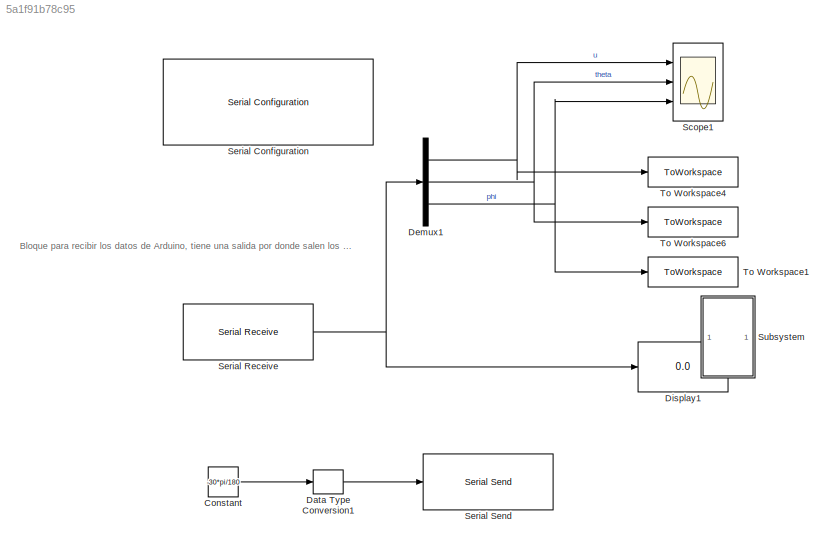
MODEL slx_5a1f91b78c95
KIND model
CONFIG AbsTol = auto
CONFIG EnableMultiTasking = off
CONFIG FixedStep = auto
CONFIG MaxStep = auto
CONFIG MinStep = auto
CONFIG RelTol = 1e-3
CONFIG SampleTimeConstraint = Unconstrained
CONFIG SolverName = VariableStepAuto
CONFIG StartTime = 0.0
CONFIG StopTime = Inf
BLOCK [Constant] Constant
  Value = -30*pi/180
BLOCK [DataTypeConversion] Data Type Conversion1
  OutDataTypeStr = single
  RndMeth = Floor
  SaturateOnIntegerOverflow = off
BLOCK [Demux] Demux1
  Outputs = 3
  Ports = [1, 3]
BLOCK [Display] Display1
  Decimation = 1
  Ports = [1]
BLOCK [Scope] Scope1
  Floating = off
  NumInputPorts = 3
  Ports = [3]
  ScopeSpecificationString = Simulink.scopes.TimeScopeBlockCfg('CurrentConfiguration', extmgr.ConfigurationSet(extmgr.Configuration('Core','General UI',true,'FigureColor',[0.8 0.8 0.8]),extmgr.Configuration('Core','Source UI',true),extmgr.Configuration('Sources','WiredSimulink',true,'DataLoggingVariableName','ScopeData1'),extmgr.Configuration('Visuals','Time Domain',true,'SerializedDisplays',{struct('MinYLimReal','-0.58905','...<+3797ch>
BLOCK [Reference] Serial Configuration  REF=instrumentseriallib/Serial Configuration
  Ports = []
  Priority = -200000
  SourceBlock = instrumentseriallib/Serial Configuration
  SourceProductBaseCode = IC
  SourceType = matlabshared.seriallib.internal.system.SerialConfiguration
BLOCK [Reference] Serial Receive  REF=instrumentseriallib/Serial Receive
  Ports = [0, 1]
  Priority = 1
  SourceBlock = instrumentseriallib/Serial Receive
  SourceProductBaseCode = IC
  SourceType = matlabshared.seriallib.internal.system.SerialReceive
BLOCK [Reference] Serial Send  REF=instrumentseriallib/Serial Send
  Ports = [1]
  Priority = 1
  SourceBlock = instrumentseriallib/Serial Send
  SourceProductBaseCode = IC
  SourceType = matlabshared.seriallib.internal.system.SerialSend
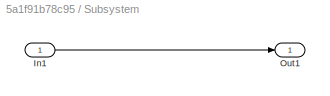
BLOCK [SubSystem] Subsystem
  Ports = [1, 1]
  RequestExecContextInheritance = off
BLOCK [Inport] Subsystem/In1
BLOCK [Outport] Subsystem/Out1
BLOCK [ToWorkspace] To Workspace1
  FixptAsFi = on
  MaxDataPoints = inf
  Ports = [1]
  SampleTime = -1
  Save2DSignal = 2-D array (concatenate along first dimension)
  VariableName = phi
BLOCK [ToWorkspace] To Workspace4
  FixptAsFi = on
  MaxDataPoints = inf
  Ports = [1]
  SampleTime = -1
  Save2DSignal = 2-D array (concatenate along first dimension)
  VariableName = u
BLOCK [ToWorkspace] To Workspace6
  FixptAsFi = on
  MaxDataPoints = inf
  Ports = [1]
  SampleTime = -1
  Save2DSignal = 2-D array (concatenate along first dimension)
  VariableName = theta
ANNOTATION (root): Bloque para recibir los datos de Arduino, tiene una salida por donde salen los datos
LINE Constant:1 -> Data Type Conversion1:1
LINE Data Type Conversion1:1 -> Serial Send:1
NET Demux1:1 -> Scope1:1, To Workspace4:1
NET Demux1:2 -> Scope1:2, To Workspace6:1
NET Demux1:3 -> Scope1:3, To Workspace1:1
NET Serial Receive:1 -> Demux1:1, Display1:1
LINE Subsystem/In1:1 -> Subsystem/Out1:1
note: NET lines group one-source signal fan-out (src -> all destinations, sorted); 1:1 wires keep LINE
